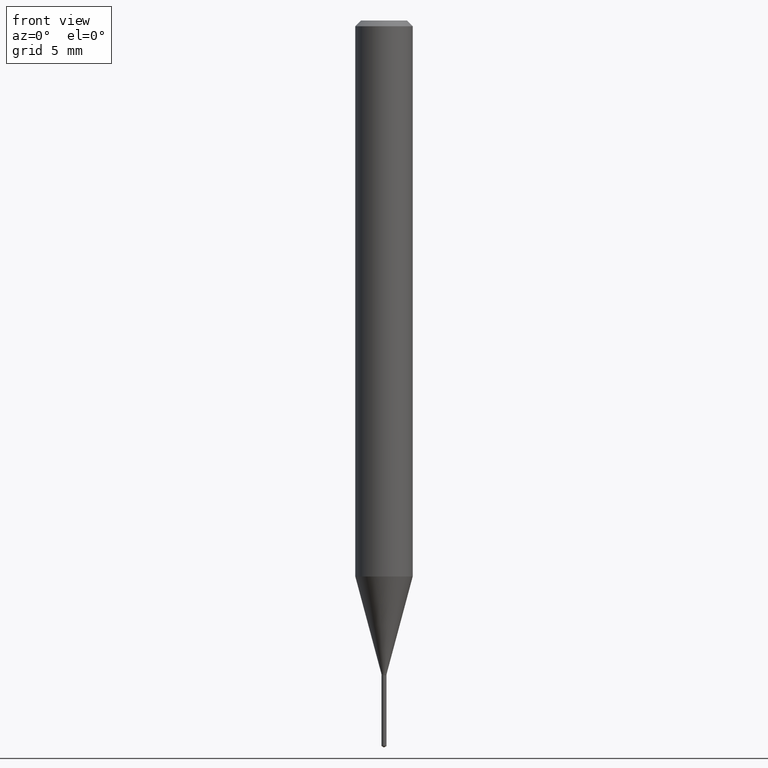
[diagram: clean part render]
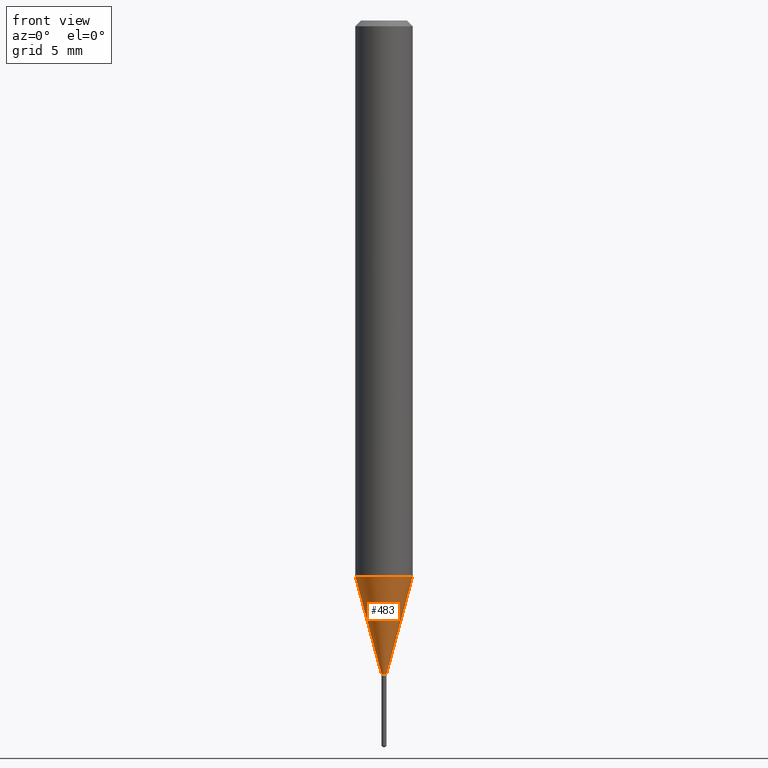
[diagram: same view with one face highlighted and labeled with its STEP entity id]
A machine part, front view. The second image highlights one B-rep face of the part: STEP entity #483.
In plain terms, the highlighted conical surface has half-angle 15 deg.
Its self-contained STEP definition (entity closure, byte-faithful):
#2 = AXIS2_PLACEMENT_3D ( 'NONE', #376, #185, #219 ) ;
#9 = VECTOR ( 'NONE', #86, 39.37007874015747433 ) ;
#31 = CIRCLE ( 'NONE', #210, 0.005300000000000000891 ) ;
#48 = DIRECTION ( 'NONE',  ( 0.2588190451025213501, 1.565188264969621968E-15, 0.9659258262890682012 ) ) ;
#50 = ORIENTED_EDGE ( 'NONE', *, *, #331, .F. ) ;
#55 = DIRECTION ( 'NONE',  ( -2.445468806185136597E-29, 3.491481338843145583E-15, 1.000000000000000000 ) ) ;
#64 = CARTESIAN_POINT ( 'NONE',  ( 2.798355503914224078E-29, -3.995310018534680444E-15, -1.144302269093172786 ) ) ;
#73 = FACE_OUTER_BOUND ( 'NONE', #249, .T. ) ;
#84 = AXIS2_PLACEMENT_3D ( 'NONE', #64, #296, #371 ) ;
#86 = DIRECTION ( 'NONE',  ( -0.2588190451025213501, 5.211531920934551042E-15, 0.9659258262890682012 ) ) ;
#118 = VECTOR ( 'NONE', #48, 39.37007874015747433 ) ;
#121 = VERTEX_POINT ( 'NONE', #484 ) ;
#123 = ORIENTED_EDGE ( 'NONE', *, *, #298, .F. ) ;
#126 = ORIENTED_EDGE ( 'NONE', *, *, #306, .T. ) ;
#165 = LINE ( 'NONE', #393, #9 ) ;
#185 = DIRECTION ( 'NONE',  ( -2.445468806185136597E-29, 3.491481338843145583E-15, 1.000000000000000000 ) ) ;
#198 = CIRCLE ( 'NONE', #84, 0.05905000000000013710 ) ;
#207 = EDGE_CURVE ( 'NONE', #121, #390, #31, .T. ) ;
#210 = AXIS2_PLACEMENT_3D ( 'NONE', #399, #55, #276 ) ;
#219 = DIRECTION ( 'NONE',  ( 1.000000000000000000, -6.982962677686350330E-15, 0.000000000000000000 ) ) ;
#220 = CARTESIAN_POINT ( 'NONE',  ( 0.005300000000000000891, -4.732702954801883924E-15, -1.344899999999999984 ) ) ;
#231 = LINE ( 'NONE', #387, #118 ) ;
#249 = EDGE_LOOP ( 'NONE', ( #123, #277, #126, #50 ) ) ;
#276 = DIRECTION ( 'NONE',  ( 1.000000000000000000, -6.982962677686350330E-15, 0.000000000000000000 ) ) ;
#277 = ORIENTED_EDGE ( 'NONE', *, *, #207, .T. ) ;
#296 = DIRECTION ( 'NONE',  ( -2.445468806185136597E-29, 3.491481338843145583E-15, 1.000000000000000000 ) ) ;
#298 = EDGE_CURVE ( 'NONE', #121, #460, #165, .T. ) ;
#306 = EDGE_CURVE ( 'NONE', #390, #426, #231, .T. ) ;
#331 = EDGE_CURVE ( 'NONE', #460, #426, #198, .T. ) ;
#371 = DIRECTION ( 'NONE',  ( 1.000000000000000000, -6.982962677686264344E-15, 0.000000000000000000 ) ) ;
#376 = CARTESIAN_POINT ( 'NONE',  ( 3.288910997438389961E-29, -4.695693252610146470E-15, -1.344899999999999984 ) ) ;
#387 = CARTESIAN_POINT ( 'NONE',  ( 0.005300000000000000891, -4.732702954801883924E-15, -1.344899999999999984 ) ) ;
#390 = VERTEX_POINT ( 'NONE', #220 ) ;
#393 = CARTESIAN_POINT ( 'NONE',  ( -0.005300000000000000891, -4.658034487614861364E-15, -1.344899999999999984 ) ) ;
#399 = CARTESIAN_POINT ( 'NONE',  ( 3.288910997438389961E-29, -4.695693252610146470E-15, -1.344899999999999984 ) ) ;
#413 = CARTESIAN_POINT ( 'NONE',  ( -0.05905000000000013710, -3.575734533068340951E-15, -1.144302269093172786 ) ) ;
#426 = VERTEX_POINT ( 'NONE', #457 ) ;
#457 = CARTESIAN_POINT ( 'NONE',  ( 0.05905000000000013710, -4.407653964652056153E-15, -1.144302269093172786 ) ) ;
#460 = VERTEX_POINT ( 'NONE', #413 ) ;
#462 = CONICAL_SURFACE ( 'NONE', #2, 0.005300000000000000891, 0.2617993877991500740 ) ;
#483 = ADVANCED_FACE ( 'NONE', ( #73 ), #462, .T. ) ;
#484 = CARTESIAN_POINT ( 'NONE',  ( -0.005300000000000000891, -4.659954802351225412E-15, -1.344899999999999984 ) ) ;